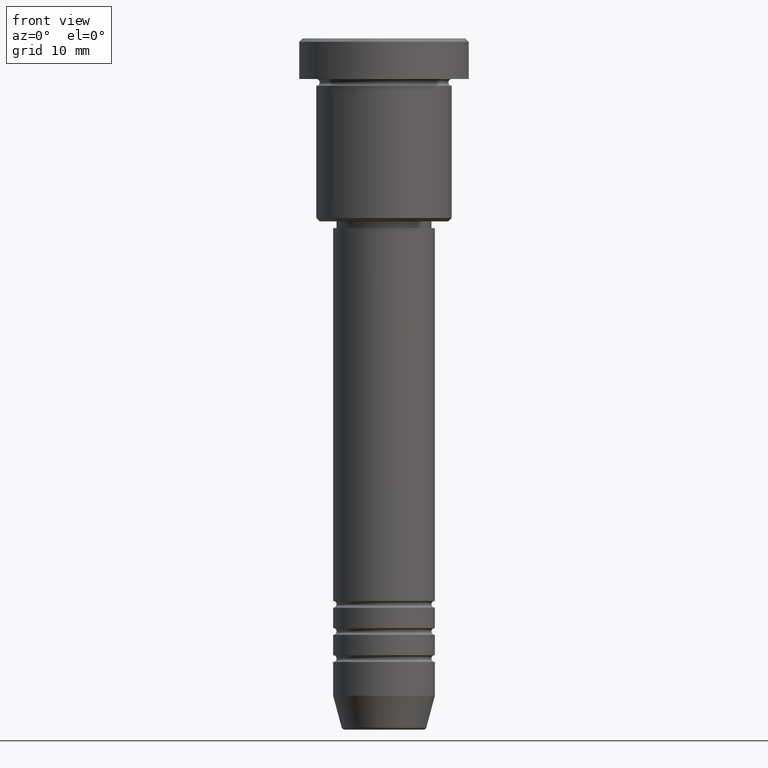
[diagram: clean part render]
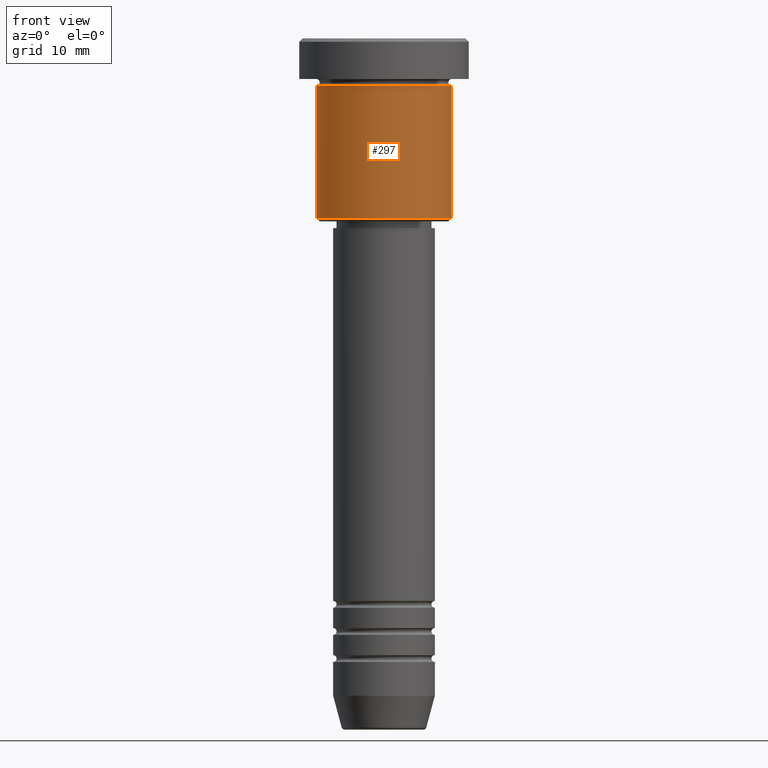
[diagram: same view with one face highlighted and labeled with its STEP entity id]
A machine part, front view. The second image highlights one B-rep face of the part: STEP entity #297.
In plain terms, the highlighted cylindrical surface (partial cylindrical patch) has radius 10 mm, axis along (-0, -0, 1).
Its self-contained STEP definition (entity closure, byte-faithful):
#38 = EDGE_CURVE ( 'NONE', #1056, #729, #796, .T. ) ;
#44 = DIRECTION ( 'NONE',  ( -0.000000000000000000, -0.000000000000000000, 1.000000000000000000 ) ) ;
#56 = CARTESIAN_POINT ( 'NONE',  ( 0.000000000000000000, 0.000000000000000000, -26.49999999999998579 ) ) ;
#83 = VERTEX_POINT ( 'NONE', #1157 ) ;
#96 = CIRCLE ( 'NONE', #1066, 10.00000000000000000 ) ;
#109 = FACE_OUTER_BOUND ( 'NONE', #236, .T. ) ;
#126 = EDGE_CURVE ( 'NONE', #83, #732, #96, .T. ) ;
#236 = EDGE_LOOP ( 'NONE', ( #414, #795, #455, #958 ) ) ;
#269 = DIRECTION ( 'NONE',  ( -0.000000000000000000, -0.000000000000000000, 1.000000000000000000 ) ) ;
#275 = AXIS2_PLACEMENT_3D ( 'NONE', #56, #1147, #411 ) ;
#297 = ADVANCED_FACE ( 'NONE', ( #109 ), #1119, .T. ) ;
#399 = DIRECTION ( 'NONE',  ( -0.000000000000000000, -0.000000000000000000, 1.000000000000000000 ) ) ;
#411 = DIRECTION ( 'NONE',  ( -1.000000000000000000, 0.000000000000000000, 0.000000000000000000 ) ) ;
#414 = ORIENTED_EDGE ( 'NONE', *, *, #522, .F. ) ;
#455 = ORIENTED_EDGE ( 'NONE', *, *, #877, .T. ) ;
#508 = CARTESIAN_POINT ( 'NONE',  ( 10.00000000000000000, 0.000000000000000000, -6.999999999999996447 ) ) ;
#522 = EDGE_CURVE ( 'NONE', #1056, #83, #1063, .T. ) ;
#551 = VECTOR ( 'NONE', #44, 1000.000000000000000 ) ;
#585 = LINE ( 'NONE', #1142, #551 ) ;
#607 = CARTESIAN_POINT ( 'NONE',  ( -10.00000000000000000, 1.224646799147353256E-15, 0.000000000000000000 ) ) ;
#633 = DIRECTION ( 'NONE',  ( 1.000000000000000000, 0.000000000000000000, 0.000000000000000000 ) ) ;
#675 = DIRECTION ( 'NONE',  ( 1.000000000000000000, 0.000000000000000000, 0.000000000000000000 ) ) ;
#709 = VECTOR ( 'NONE', #883, 1000.000000000000000 ) ;
#729 = VERTEX_POINT ( 'NONE', #851 ) ;
#732 = VERTEX_POINT ( 'NONE', #508 ) ;
#795 = ORIENTED_EDGE ( 'NONE', *, *, #38, .T. ) ;
#796 = CIRCLE ( 'NONE', #275, 10.00000000000000000 ) ;
#851 = CARTESIAN_POINT ( 'NONE',  ( 10.00000000000000000, 0.000000000000000000, -26.49999999999998579 ) ) ;
#877 = EDGE_CURVE ( 'NONE', #729, #732, #585, .T. ) ;
#883 = DIRECTION ( 'NONE',  ( -0.000000000000000000, -0.000000000000000000, 1.000000000000000000 ) ) ;
#958 = ORIENTED_EDGE ( 'NONE', *, *, #126, .F. ) ;
#996 = CARTESIAN_POINT ( 'NONE',  ( -10.00000000000000000, 1.224646799147353256E-15, -26.49999999999998579 ) ) ;
#1032 = CARTESIAN_POINT ( 'NONE',  ( 0.000000000000000000, 0.000000000000000000, 0.000000000000000000 ) ) ;
#1056 = VERTEX_POINT ( 'NONE', #996 ) ;
#1063 = LINE ( 'NONE', #607, #709 ) ;
#1066 = AXIS2_PLACEMENT_3D ( 'NONE', #1182, #269, #633 ) ;
#1071 = AXIS2_PLACEMENT_3D ( 'NONE', #1032, #399, #675 ) ;
#1119 = CYLINDRICAL_SURFACE ( 'NONE', #1071, 10.00000000000000000 ) ;
#1142 = CARTESIAN_POINT ( 'NONE',  ( 10.00000000000000000, 0.000000000000000000, 0.000000000000000000 ) ) ;
#1147 = DIRECTION ( 'NONE',  ( -0.000000000000000000, -0.000000000000000000, 1.000000000000000000 ) ) ;
#1157 = CARTESIAN_POINT ( 'NONE',  ( -10.00000000000000000, 1.224646799147353256E-15, -6.999999999999996447 ) ) ;
#1182 = CARTESIAN_POINT ( 'NONE',  ( 0.000000000000000000, 0.000000000000000000, -6.999999999999996447 ) ) ;